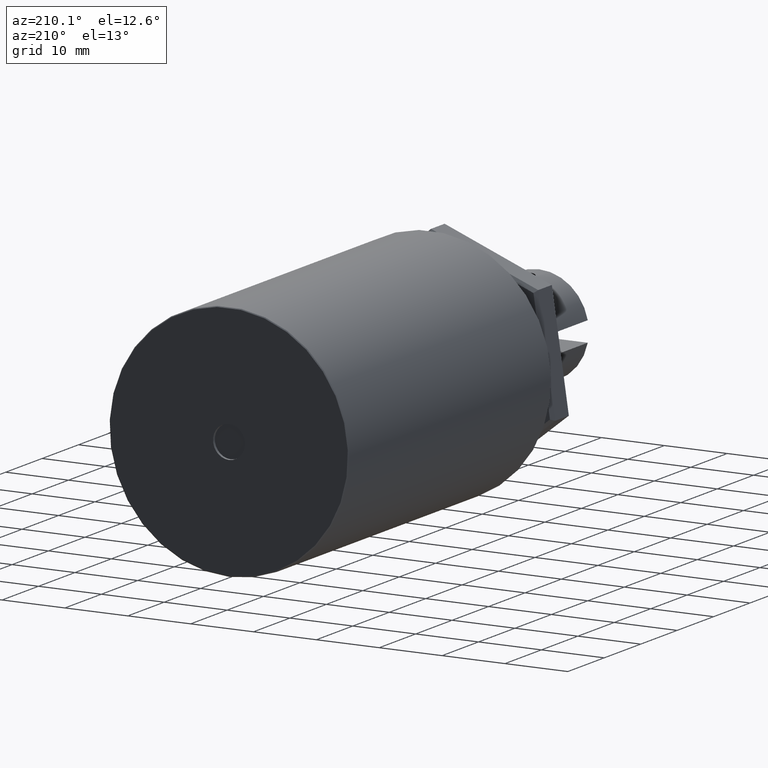
[diagram: clean part render]
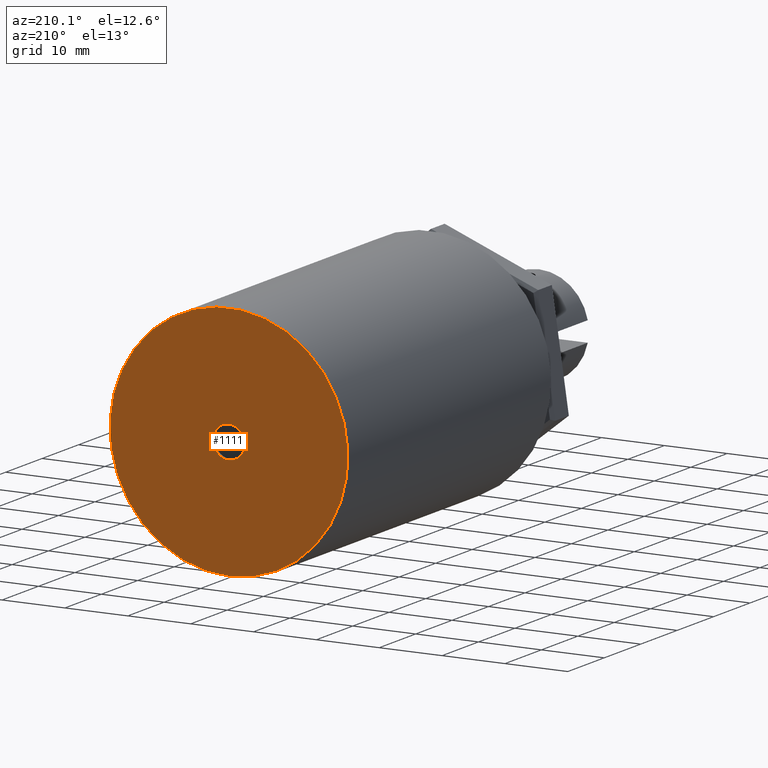
[diagram: same view with one face highlighted and labeled with its STEP entity id]
A machine part, auxiliary view. The second image highlights one B-rep face of the part: STEP entity #1111.
In plain terms, the highlighted planar face has unit normal (0, 1, -0).
Its self-contained STEP definition (entity closure, byte-faithful):
#104=CIRCLE('',#1295,0.00254);
#105=CIRCLE('',#1296,0.018923);
#389=ORIENTED_EDGE('',*,*,#536,.T.);
#390=ORIENTED_EDGE('',*,*,#537,.T.);
#536=EDGE_CURVE('',#633,#633,#104,.T.);
#537=EDGE_CURVE('',#634,#634,#105,.T.);
#633=VERTEX_POINT('',#1962);
#634=VERTEX_POINT('',#1964);
#885=EDGE_LOOP('',(#389));
#886=EDGE_LOOP('',(#390));
#988=FACE_BOUND('',#885,.T.);
#989=FACE_BOUND('',#886,.T.);
#1046=PLANE('',#1294);
#1111=ADVANCED_FACE('',(#988,#989),#1046,.T.);
#1294=AXIS2_PLACEMENT_3D('',#1960,#1617,#1618);
#1295=AXIS2_PLACEMENT_3D('',#1961,#1619,#1620);
#1296=AXIS2_PLACEMENT_3D('',#1963,#1621,#1622);
#1617=DIRECTION('',(0.,0.,1.));
#1618=DIRECTION('',(1.,0.,0.));
#1619=DIRECTION('',(3.06161699786839E-16,0.,-1.));
#1620=DIRECTION('',(-1.,0.,-3.06161699786839E-16));
#1621=DIRECTION('',(0.,0.,1.));
#1622=DIRECTION('',(1.,0.,0.));
#1960=CARTESIAN_POINT('',(0.00127,0.,0.068326));
#1961=CARTESIAN_POINT('',(-7.43676630516884E-18,0.,0.068326));
#1962=CARTESIAN_POINT('',(-0.00254000000000001,0.,0.068326));
#1963=CARTESIAN_POINT('',(0.,0.,0.068326));
#1964=CARTESIAN_POINT('',(0.018923,0.,0.068326));